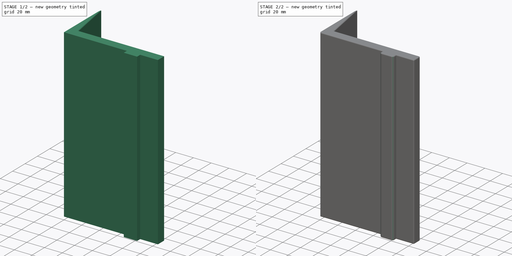
[diagram: build sequence overview — one tinted view per stage of 2, left to right]
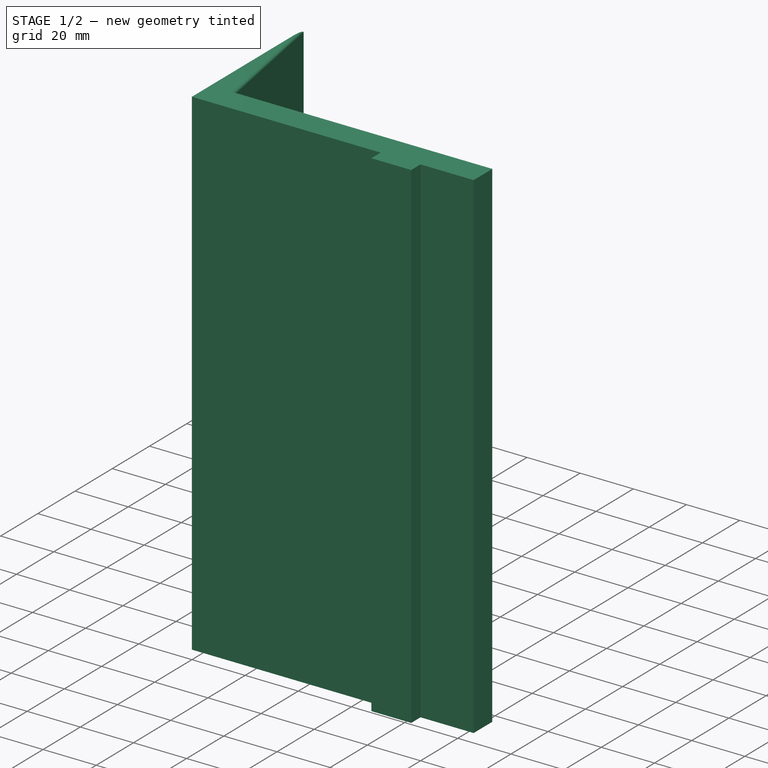
[diagram: stage 1 of 2 — iso view after this stage's code; geometry added in this stage tinted green]
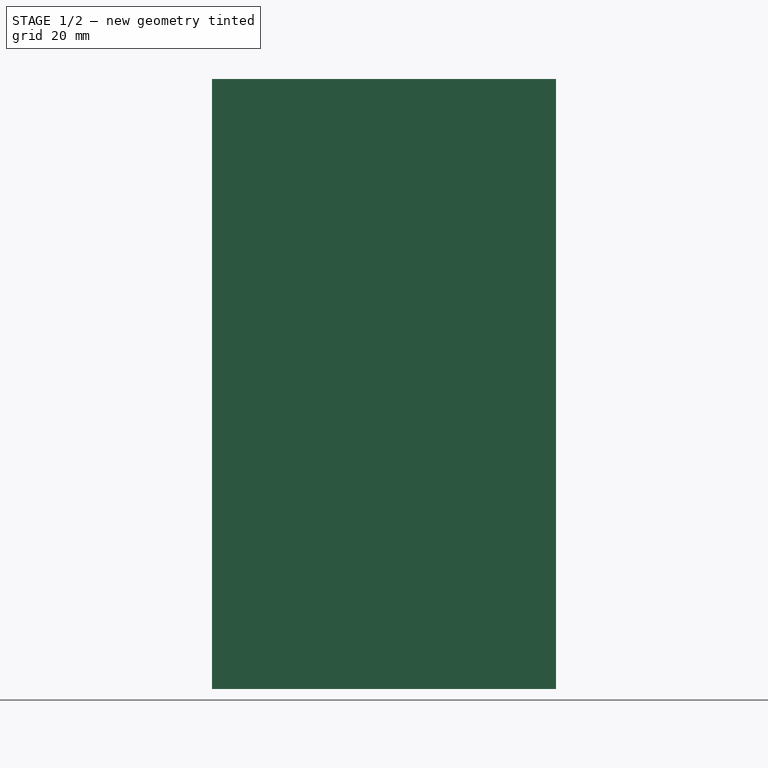
[diagram: stage 1 of 2 — front view after this stage's code; geometry added in this stage tinted green]
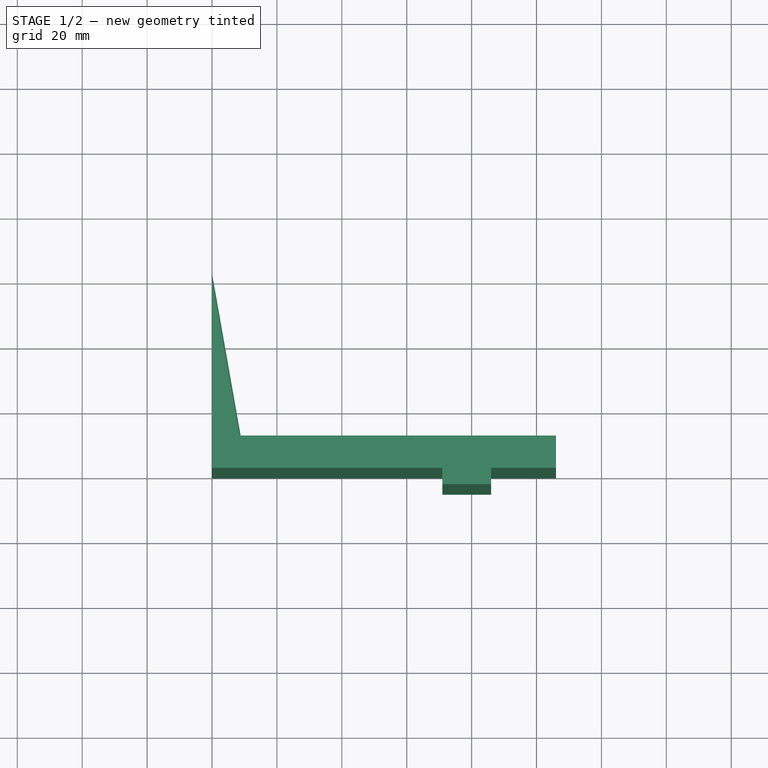
[diagram: stage 1 of 2 — top view after this stage's code; geometry added in this stage tinted green]
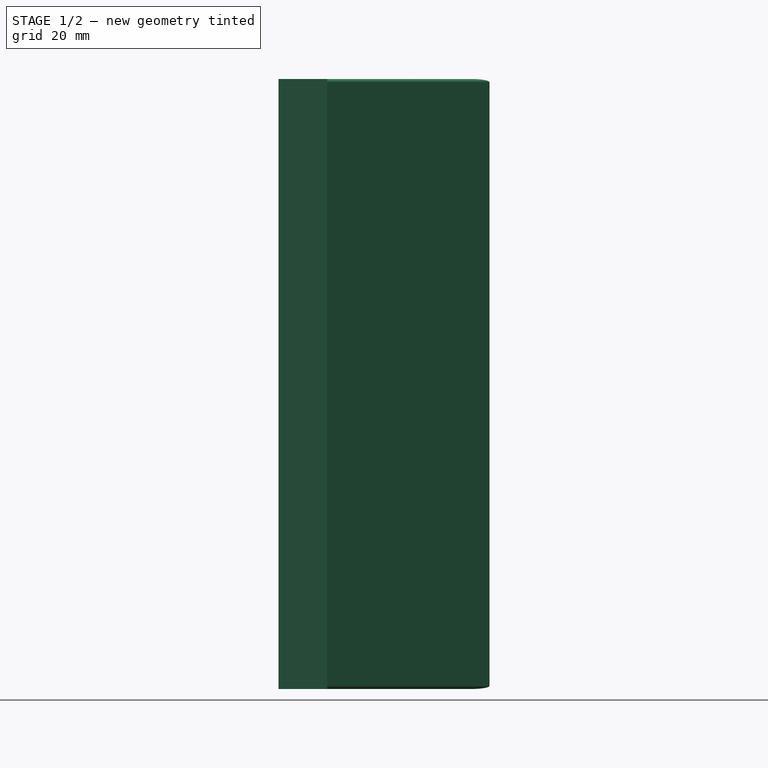
[diagram: stage 1 of 2 — right view after this stage's code; geometry added in this stage tinted green]
FCSTD DOCUMENT  (FreeCAD 0.21R33771 (Git))
Label: Belt_sander_angle_guide
License: All rights reserved
LicenseURL: https://en.wikipedia.org/wiki/All_rights_reserved
objects: Part::Fillet×3, Sketcher::SketchObject×1, PartDesign::Body×1, App::Part×1, Spreadsheet::Sheet×1, Part::Extrusion×1
note: 6 computed .brp shape members not serialized (recipe doc carries the construction recipe); baked Part::Feature solids carry a one-line shape summary decoded from their .brp

FEATURE [Sketcher::SketchObject] Sketch
  FullyConstrained = true
  MapMode = 5
  Support = -> [XY_Plane001]
  expr: Constraints[19] = Spreadsheet.guide_angle
  sketch-geometry (9):
    g0: LineSegment StartX=0 StartY=0 StartZ=0 EndX=0 EndY=60 EndZ=0
    g1: LineSegment StartX=0 StartY=60 StartZ=0 EndX=8.81635 EndY=10 EndZ=0
    g2: LineSegment StartX=8.81635 StartY=10 StartZ=0 EndX=106 EndY=10 EndZ=0
    g3: LineSegment StartX=106 StartY=10 StartZ=0 EndX=106 EndY=0 EndZ=0
    g4: LineSegment StartX=106 StartY=0 StartZ=0 EndX=86 EndY=0 EndZ=0
    g5: LineSegment StartX=86 StartY=0 StartZ=0 EndX=86 EndY=-5 EndZ=0
    g6: LineSegment StartX=86 StartY=-5 StartZ=0 EndX=71 EndY=-5 EndZ=0
    g7: LineSegment StartX=71 StartY=-5 StartZ=0 EndX=71 EndY=0 EndZ=0
    g8: LineSegment StartX=71 StartY=0 StartZ=0 EndX=0 EndY=0 EndZ=0
  constraints (26):
    c: Coincident(g0,g-1)
    c: PointOnObject(g0,g-2)
    c: Coincident(g1,g0)
    c: Coincident(g2,g1)
    c: Horizontal(g2)
    c: Coincident(g3,g2)
    c: PointOnObject(g3,g-1)
    c: Vertical(g3)
    c: Coincident(g4,g3)
    c: Horizontal(g4)
    c: Coincident(g5,g4)
    c: Vertical(g5)
    c: Coincident(g6,g5)
    c: Horizontal(g6)
    c: Coincident(g7,g6)
    c: Vertical(g7)
    c: Coincident(g8,g7)
    c: Coincident(g8,g0)
    c: Horizontal(g8)
    c: Angle(g0,g1) = 0.174533
    c: DistanceX(g8,g8) = 71
    c: DistanceY(g7,g7) = 5
    c: DistanceX(g6,g6) = 15
    c: DistanceX(g4,g4) = 20
    c: DistanceY(g3,g3) = 10
    c: DistanceY(g0,g0) = 60
FEATURE [PartDesign::Body] Body
  Group = -> [Sketch]
  Origin = -> Origin001
FEATURE [App::Part] Part
  Group = -> [Body]
  Origin = -> Origin
FEATURE [Spreadsheet::Sheet] Spreadsheet
  cells = A1='Blade_angle(exclusive); B1(guide_angle)=10
FEATURE [Part::Extrusion] Extrude
  Base = -> Sketch
  Dir = (0,0,1)
  DirMode = 2
  FaceMakerClass = Part::FaceMakerBullseye
  LengthFwd = 188
  LengthRev = 0
  Solid = true
  Symmetric = false
FEATURE [Part::Fillet] Fillet  label="Guide_fillet"
  Base = -> Extrude
  Edges = 2 edges r=1: [Edge6,Edge7]
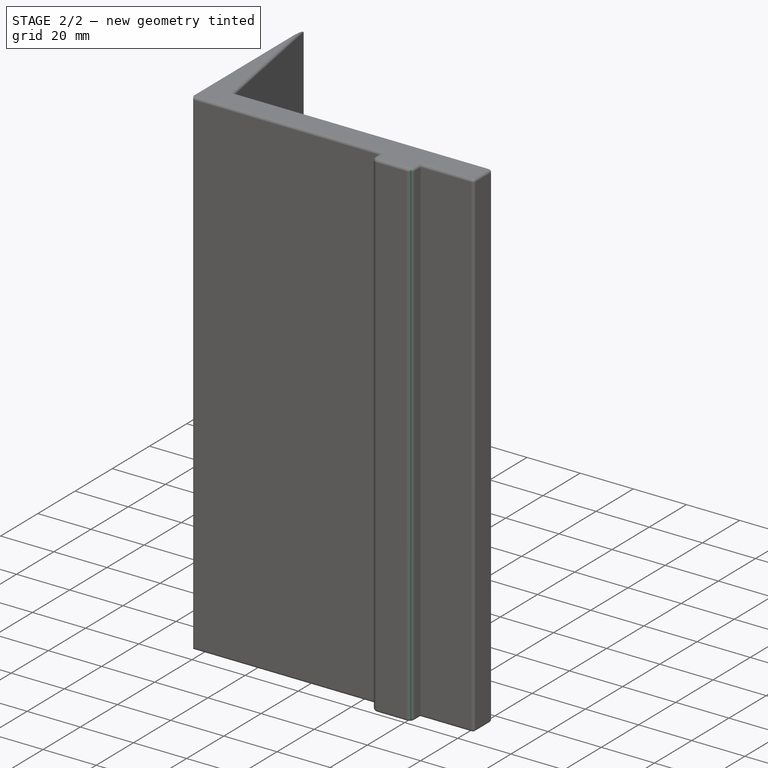
[diagram: stage 2 of 2 — iso view after this stage's code; geometry added in this stage tinted green]
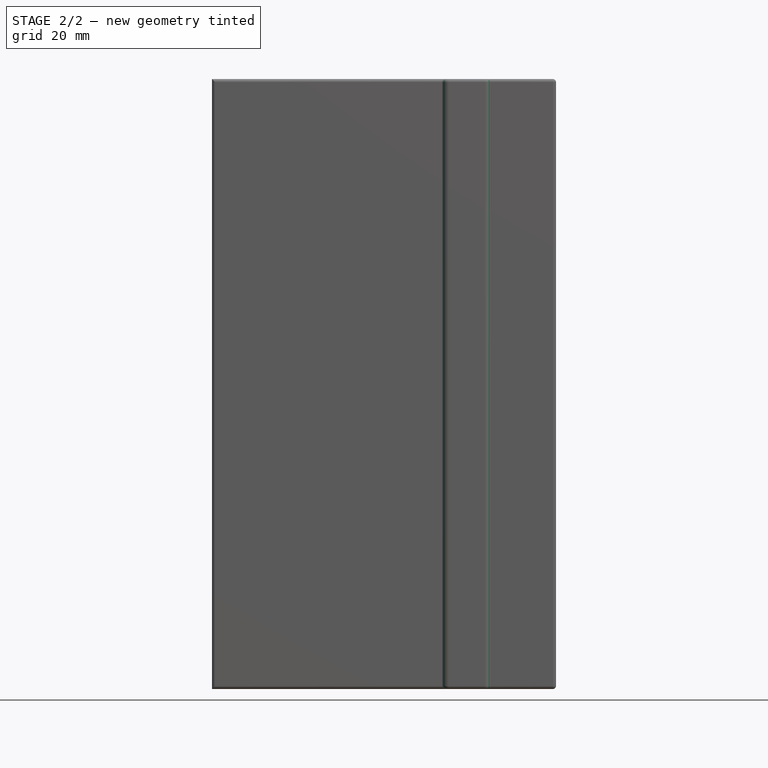
[diagram: stage 2 of 2 — front view after this stage's code; geometry added in this stage tinted green]
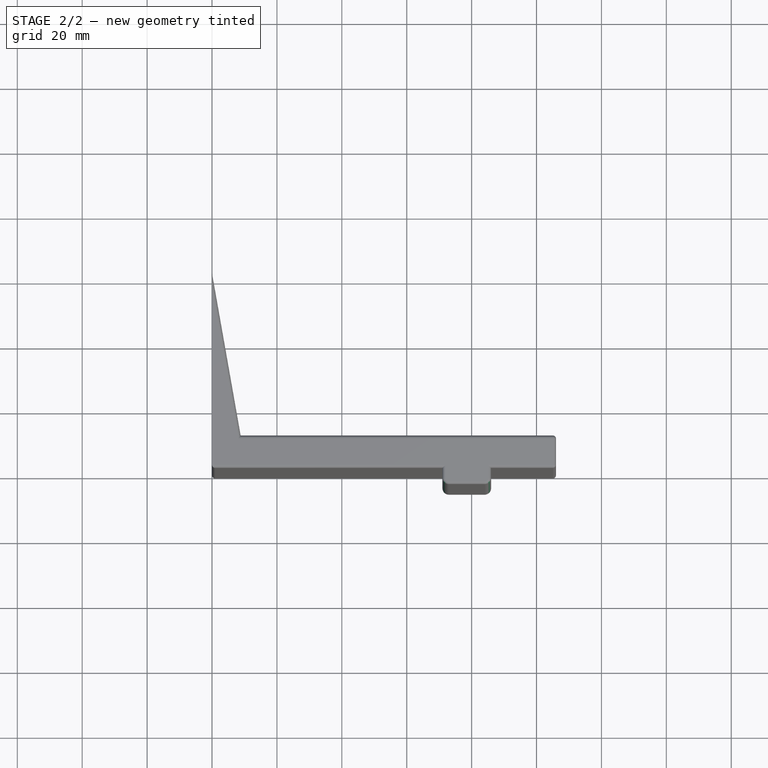
[diagram: stage 2 of 2 — top view after this stage's code; geometry added in this stage tinted green]
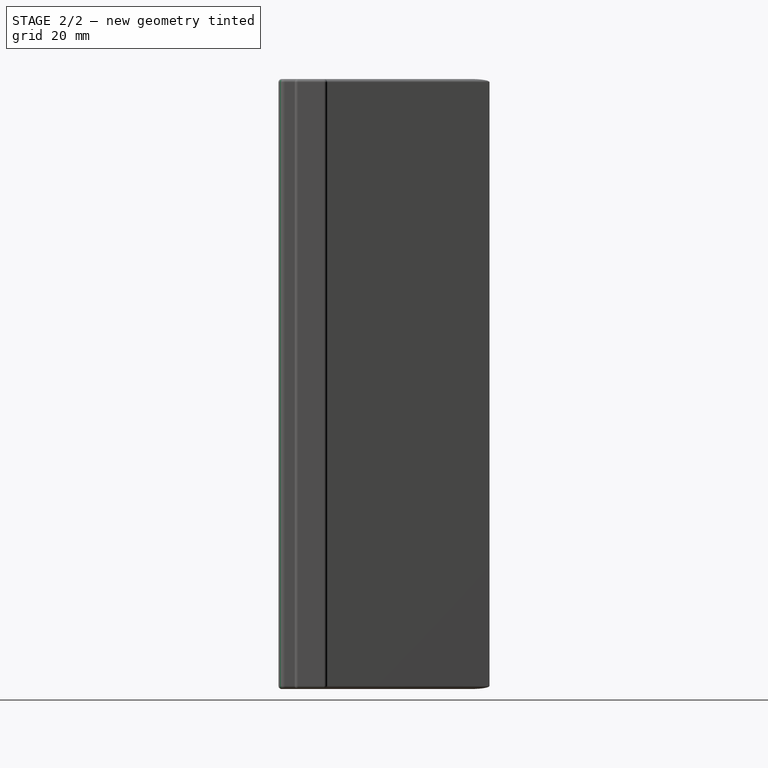
[diagram: stage 2 of 2 — right view after this stage's code; geometry added in this stage tinted green]
FEATURE [Part::Fillet] Fillet001  label="Slot_fillet"
  Base = -> Fillet
  Edges = 2 edges r=2: [Edge32,Edge33]
FEATURE [Part::Fillet] Fillet002  label="General_fillet"
  Base = -> Fillet001
  Edges = 17 edges r=1: [Edge1,Edge3,Edge5,Edge6,Edge7,Edge8,Edge12,Edge13,Edge18,Edge19,Edge20,Edge30,Edge35,Edge36,Edge37,Edge38,Edge39]
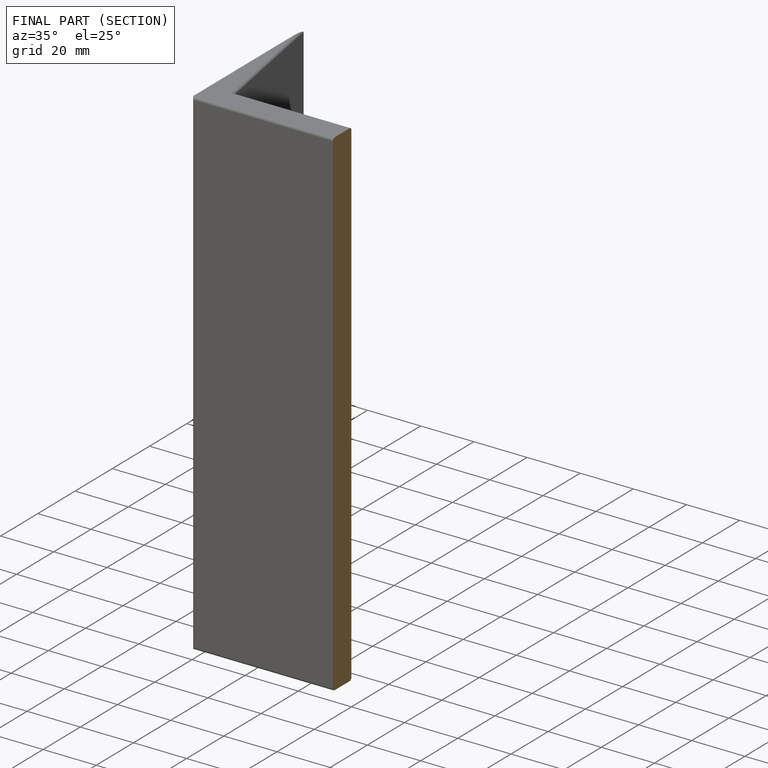
[diagram: finished part — half-section view (interior)]
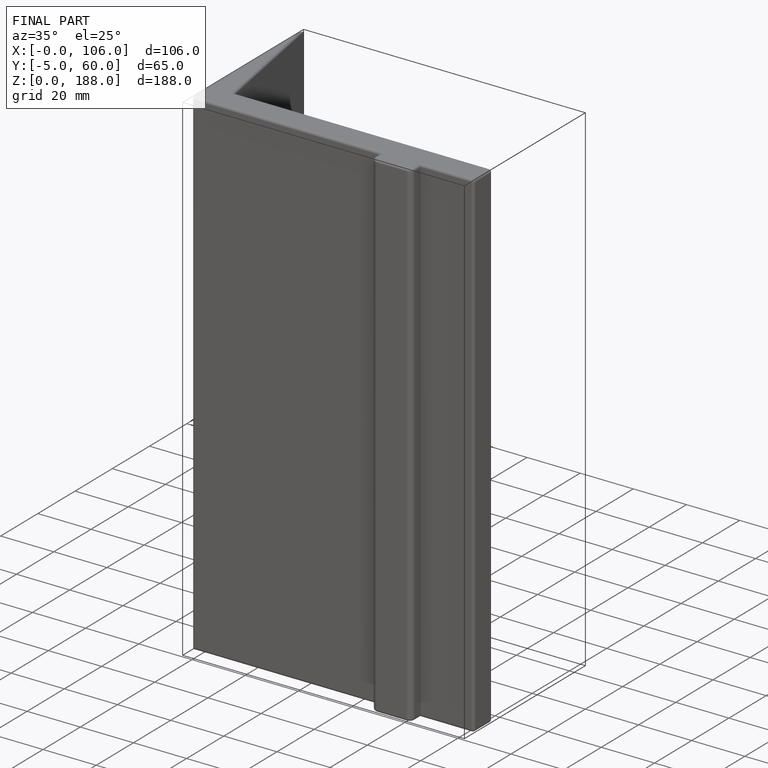
[diagram: finished part — iso view with bounding-box wireframe]
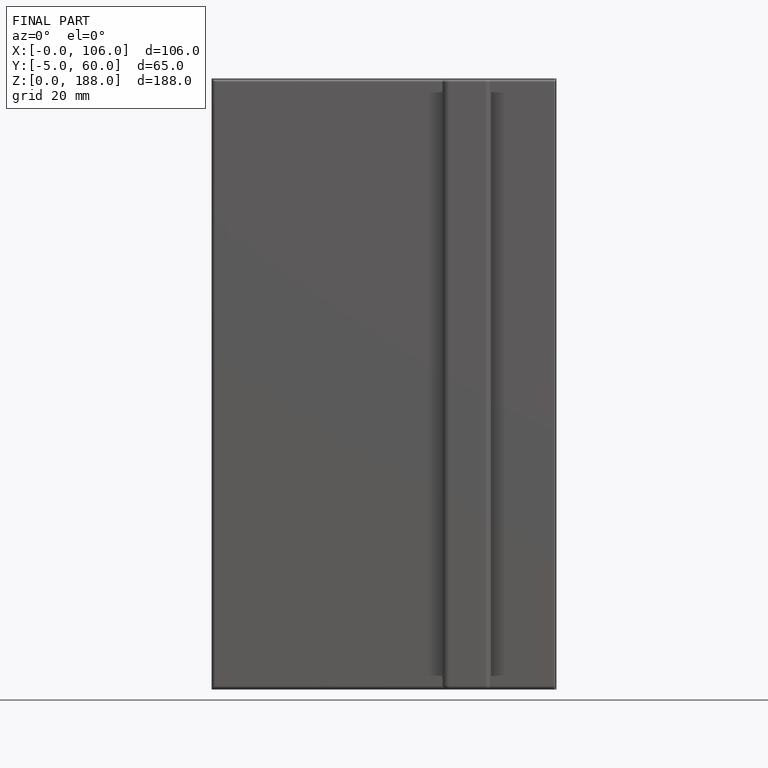
[diagram: finished part — front view with bounding-box wireframe]
